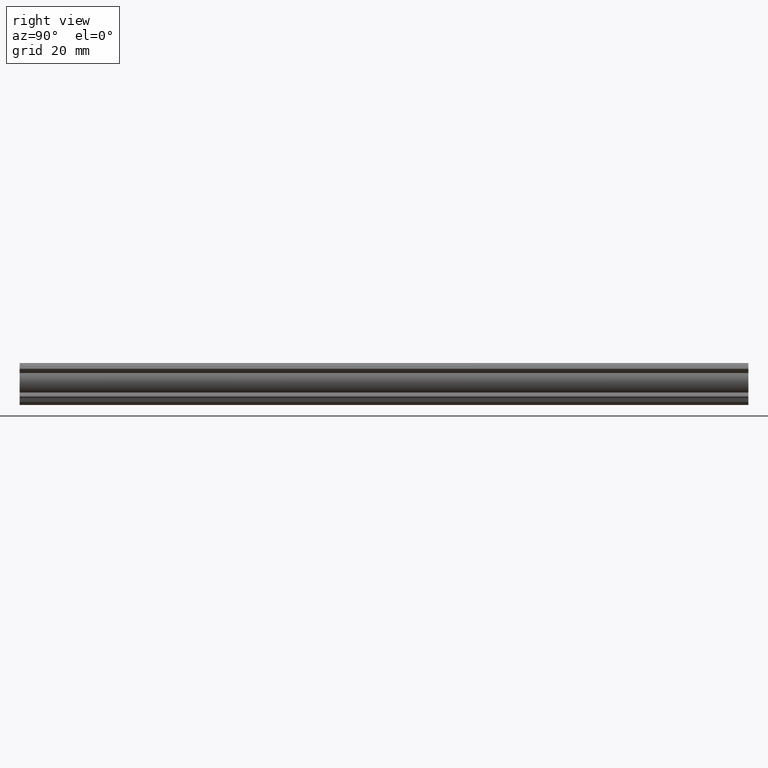
[diagram: clean part render]
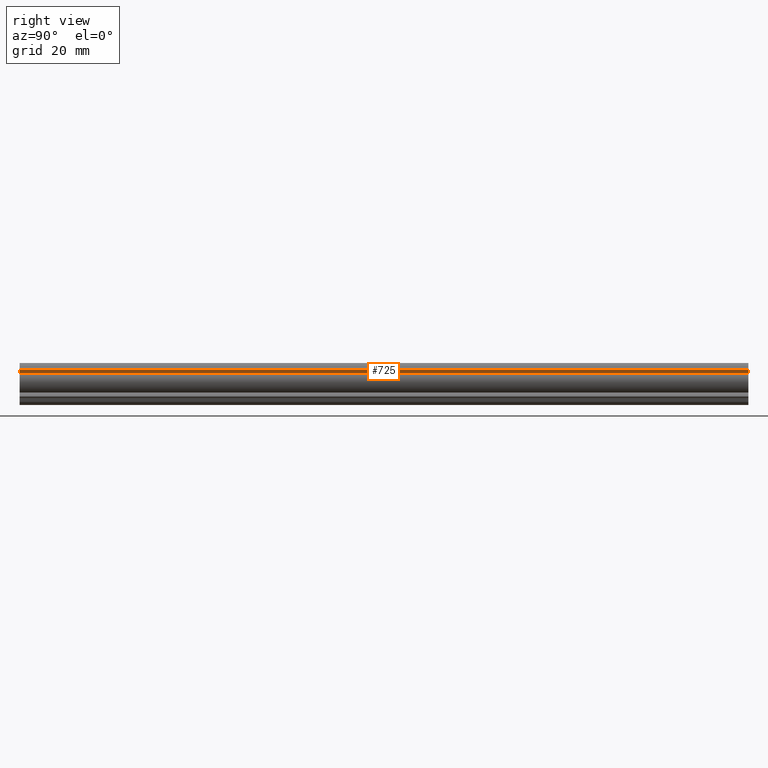
[diagram: same view with one face highlighted and labeled with its STEP entity id]
A machine part, right view. The second image highlights one B-rep face of the part: STEP entity #725.
In plain terms, the highlighted face is a freeform B-spline surface patch.
Its self-contained STEP definition (entity closure, byte-faithful):
#51=CARTESIAN_POINT('',(7.539191812294630,0.0,-2.725848923960945));
#52=VERTEX_POINT('',#51);
#66=CARTESIAN_POINT('',(8.387719949718450,0.0,-1.877320786537310));
#67=VERTEX_POINT('',#66);
#68=CARTESIAN_POINT('',(7.539191812294630,0.0,-2.725848923960945));
#69=CARTESIAN_POINT('',(8.387719949718450,0.0,-1.877320786537310));
#70=QUASI_UNIFORM_CURVE('',1,(#68,#69),.UNSPECIFIED.,.F.,.U.);
#71=EDGE_CURVE('',#52,#67,#70,.T.);
#237=CARTESIAN_POINT('',(7.539191812294630,200.0,-2.725848923960945));
#238=VERTEX_POINT('',#237);
#389=CARTESIAN_POINT('',(8.387719949718450,200.0,-1.877320786537310));
#390=VERTEX_POINT('',#389);
#408=CARTESIAN_POINT('',(7.539191812294630,200.0,-2.725848923960945));
#409=CARTESIAN_POINT('',(8.387719949718450,200.0,-1.877320786537310));
#410=QUASI_UNIFORM_CURVE('',1,(#408,#409),.UNSPECIFIED.,.F.,.U.);
#411=EDGE_CURVE('',#238,#390,#410,.T.);
#700=CARTESIAN_POINT('',(8.387719949718450,200.0,-1.877320786537310));
#701=CARTESIAN_POINT('',(8.387719949718450,0.0,-1.877320786537310));
#702=QUASI_UNIFORM_CURVE('',1,(#700,#701),.UNSPECIFIED.,.F.,.U.);
#703=EDGE_CURVE('',#390,#67,#702,.T.);
#710=CARTESIAN_POINT('',(8.430104024122656,-9.989999612361183,-1.834936712133106));
#711=CARTESIAN_POINT('',(7.496807806168316,-9.989999612361183,-2.768232930087251));
#712=CARTESIAN_POINT('',(8.430104024122656,209.990004976779200,-1.834936712133106));
#713=CARTESIAN_POINT('',(7.496807806168316,209.990004976779200,-2.768232930087251));
#714=B_SPLINE_SURFACE_WITH_KNOTS('',1,1,((#710,#712),(#711,#713)),.UNSPECIFIED.,.F.,.F.,.U.,(2,2),(2,2),(0.041708241075650,0.958291691869125),(0.0,219.980004589140410),.UNSPECIFIED.);
#715=ORIENTED_EDGE('',*,*,#71,.F.);
#716=CARTESIAN_POINT('',(7.539191812294630,200.0,-2.725848923960945));
#717=CARTESIAN_POINT('',(7.539191812294630,0.0,-2.725848923960945));
#718=QUASI_UNIFORM_CURVE('',1,(#716,#717),.UNSPECIFIED.,.F.,.U.);
#719=EDGE_CURVE('',#238,#52,#718,.T.);
#720=ORIENTED_EDGE('',*,*,#719,.F.);
#721=ORIENTED_EDGE('',*,*,#411,.T.);
#722=ORIENTED_EDGE('',*,*,#703,.T.);
#723=EDGE_LOOP('',(#715,#720,#721,#722));
#724=FACE_OUTER_BOUND('',#723,.T.);
#725=ADVANCED_FACE('',(#724),#714,.T.);